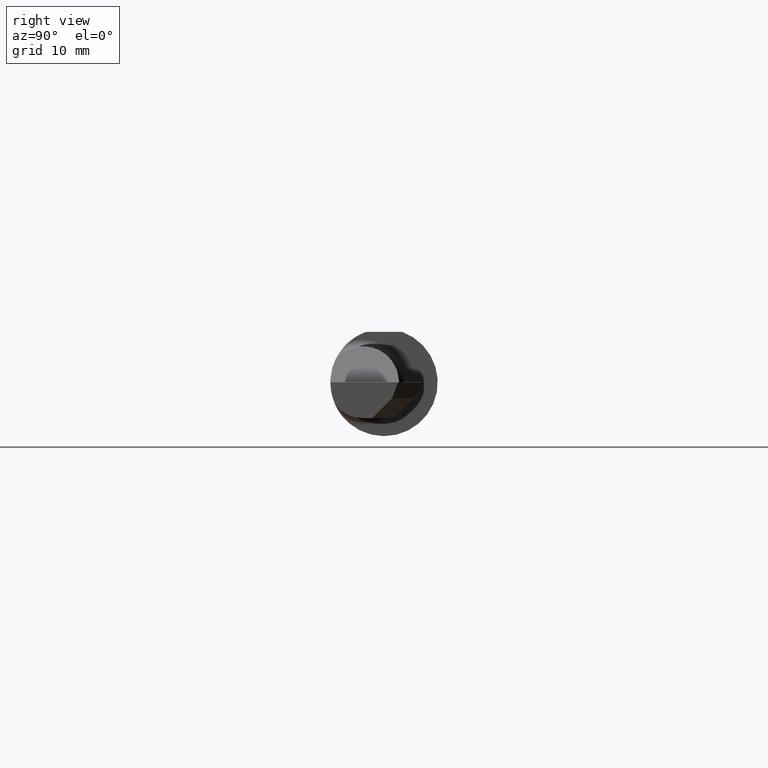
[diagram: clean part render]
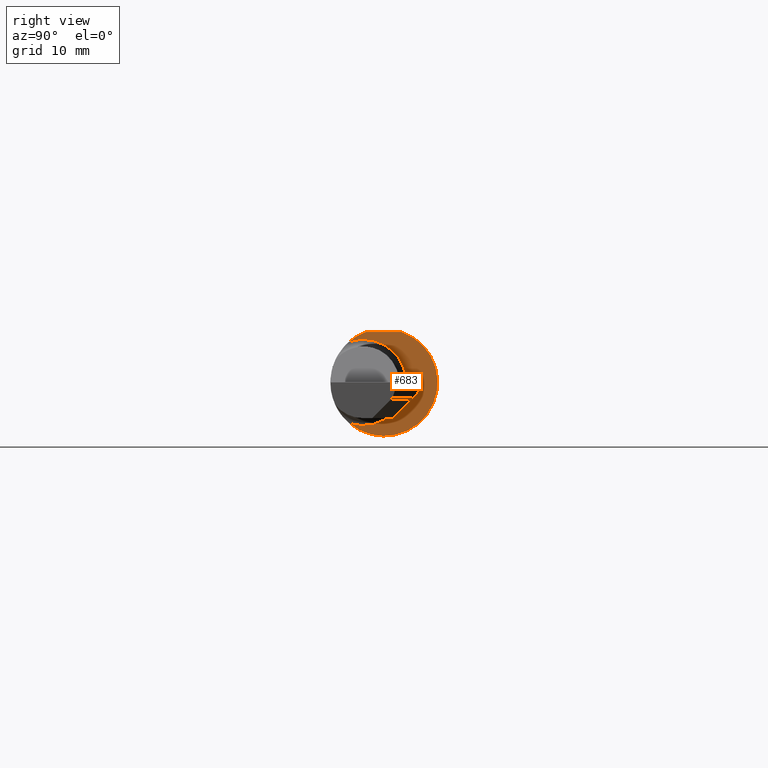
[diagram: same view with one face highlighted and labeled with its STEP entity id]
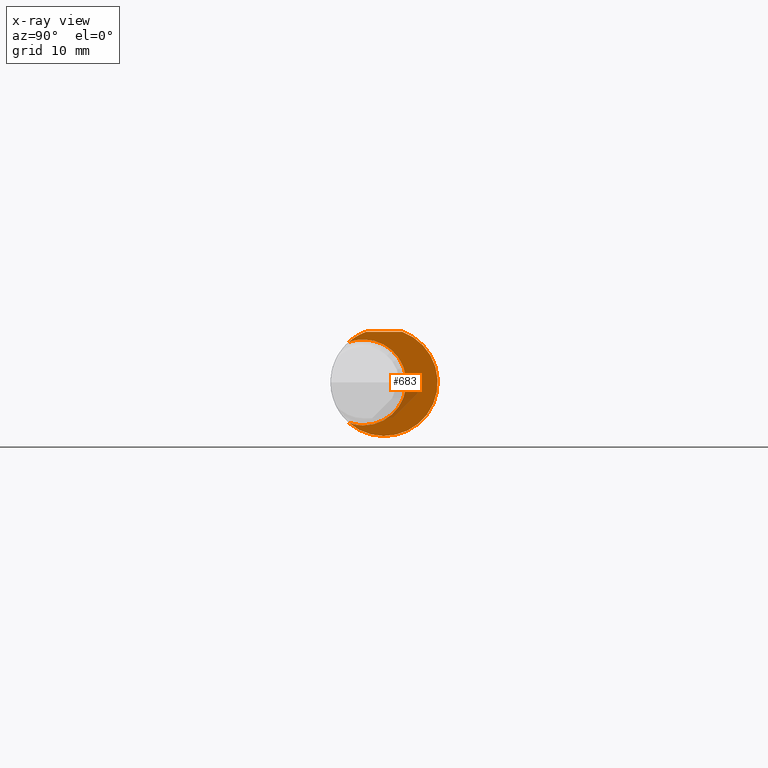
[diagram: x-ray of the same camera — body ghosted, the highlighted face saturated]
A machine part, right view. The second image highlights one B-rep face of the part: STEP entity #683.
The next image is the same camera in x-ray: the body ghosted, the highlighted face saturated — about 9% of this face is hidden behind the body in this view.
In plain terms, the highlighted planar face has unit normal (1, 0, 0).
Its self-contained STEP definition (entity closure, byte-faithful):
#16 = EDGE_CURVE ( 'NONE', #564, #267, #25, .T. ) ;
#25 = CIRCLE ( 'NONE', #352, 0.1873499999999999888 ) ;
#56 = AXIS2_PLACEMENT_3D ( 'NONE', #452, #746, #366 ) ;
#78 = DIRECTION ( 'NONE',  ( 1.000000000000000000, 0.000000000000000000, 0.000000000000000000 ) ) ;
#80 = CARTESIAN_POINT ( 'NONE',  ( 1.155000000000000027, -0.07234999999999998377, 0.000000000000000000 ) ) ;
#119 = CARTESIAN_POINT ( 'NONE',  ( 1.155000000000000027, -0.1232518659295093050, 0.1410992560040422727 ) ) ;
#143 = CARTESIAN_POINT ( 'NONE',  ( 1.155000000000000027, 0.000000000000000000, 0.000000000000000000 ) ) ;
#152 = CARTESIAN_POINT ( 'NONE',  ( 1.155000000000000027, 0.000000000000000000, 0.000000000000000000 ) ) ;
#161 = DIRECTION ( 'NONE',  ( -1.000000000000000000, -0.000000000000000000, -0.000000000000000000 ) ) ;
#179 = CARTESIAN_POINT ( 'NONE',  ( 1.155000000000000027, -0.06325108694718215019, 0.1763499999999999790 ) ) ;
#183 = DIRECTION ( 'NONE',  ( 0.000000000000000000, -1.000000000000000000, 0.000000000000000000 ) ) ;
#210 = AXIS2_PLACEMENT_3D ( 'NONE', #293, #282, #752 ) ;
#229 = CIRCLE ( 'NONE', #276, 0.1499999999999999944 ) ;
#232 = DIRECTION ( 'NONE',  ( -1.000000000000000000, -0.000000000000000000, -0.000000000000000000 ) ) ;
#233 = ORIENTED_EDGE ( 'NONE', *, *, #772, .T. ) ;
#234 = PLANE ( 'NONE',  #56 ) ;
#239 = VERTEX_POINT ( 'NONE', #581 ) ;
#242 = ORIENTED_EDGE ( 'NONE', *, *, #478, .T. ) ;
#267 = VERTEX_POINT ( 'NONE', #286 ) ;
#276 = AXIS2_PLACEMENT_3D ( 'NONE', #316, #232, #530 ) ;
#282 = DIRECTION ( 'NONE',  ( -1.000000000000000000, -0.000000000000000000, -0.000000000000000000 ) ) ;
#286 = CARTESIAN_POINT ( 'NONE',  ( 1.155000000000000027, 0.06325108694718213631, 0.1763499999999999790 ) ) ;
#293 = CARTESIAN_POINT ( 'NONE',  ( 1.155000000000000027, -0.07234999999999998377, 0.000000000000000000 ) ) ;
#296 = ORIENTED_EDGE ( 'NONE', *, *, #461, .T. ) ;
#312 = DIRECTION ( 'NONE',  ( 0.000000000000000000, 0.000000000000000000, -1.000000000000000000 ) ) ;
#316 = CARTESIAN_POINT ( 'NONE',  ( 1.155000000000000027, -0.07234999999999998377, 0.000000000000000000 ) ) ;
#352 = AXIS2_PLACEMENT_3D ( 'NONE', #143, #738, #429 ) ;
#356 = ORIENTED_EDGE ( 'NONE', *, *, #741, .T. ) ;
#366 = DIRECTION ( 'NONE',  ( 0.000000000000000000, 0.000000000000000000, -1.000000000000000000 ) ) ;
#377 = DIRECTION ( 'NONE',  ( 0.000000000000000000, 0.000000000000000000, -1.000000000000000000 ) ) ;
#397 = VECTOR ( 'NONE', #183, 39.37007874015748143 ) ;
#414 = AXIS2_PLACEMENT_3D ( 'NONE', #152, #78, #377 ) ;
#429 = DIRECTION ( 'NONE',  ( 0.000000000000000000, 0.000000000000000000, -1.000000000000000000 ) ) ;
#443 = CIRCLE ( 'NONE', #210, 0.1499999999999999944 ) ;
#452 = CARTESIAN_POINT ( 'NONE',  ( 1.155000000000000027, 0.2526500000000000412, 0.000000000000000000 ) ) ;
#461 = EDGE_CURVE ( 'NONE', #239, #725, #229, .T. ) ;
#478 = EDGE_CURVE ( 'NONE', #725, #564, #572, .T. ) ;
#498 = ORIENTED_EDGE ( 'NONE', *, *, #905, .T. ) ;
#524 = VERTEX_POINT ( 'NONE', #179 ) ;
#530 = DIRECTION ( 'NONE',  ( 0.000000000000000000, 0.000000000000000000, -1.000000000000000000 ) ) ;
#553 = EDGE_LOOP ( 'NONE', ( #233, #356, #296, #242, #856, #498 ) ) ;
#556 = VERTEX_POINT ( 'NONE', #119 ) ;
#557 = CARTESIAN_POINT ( 'NONE',  ( 1.155000000000000027, 0.1749999999999999889, 0.1763499999999999790 ) ) ;
#559 = CARTESIAN_POINT ( 'NONE',  ( 1.155000000000000027, -0.1232518659295093050, -0.1410992560040422727 ) ) ;
#564 = VERTEX_POINT ( 'NONE', #559 ) ;
#572 = CIRCLE ( 'NONE', #684, 0.1499999999999999944 ) ;
#581 = CARTESIAN_POINT ( 'NONE',  ( 1.155000000000000027, -0.07234999999999996989, 0.1499999999999999944 ) ) ;
#683 = ADVANCED_FACE ( 'NONE', ( #742 ), #234, .T. ) ;
#684 = AXIS2_PLACEMENT_3D ( 'NONE', #80, #161, #312 ) ;
#725 = VERTEX_POINT ( 'NONE', #898 ) ;
#738 = DIRECTION ( 'NONE',  ( 1.000000000000000000, 0.000000000000000000, 0.000000000000000000 ) ) ;
#741 = EDGE_CURVE ( 'NONE', #556, #239, #443, .T. ) ;
#742 = FACE_OUTER_BOUND ( 'NONE', #553, .T. ) ;
#746 = DIRECTION ( 'NONE',  ( 1.000000000000000000, 0.000000000000000000, 0.000000000000000000 ) ) ;
#752 = DIRECTION ( 'NONE',  ( 0.000000000000000000, 0.000000000000000000, -1.000000000000000000 ) ) ;
#763 = CIRCLE ( 'NONE', #414, 0.1873499999999999888 ) ;
#772 = EDGE_CURVE ( 'NONE', #524, #556, #763, .T. ) ;
#856 = ORIENTED_EDGE ( 'NONE', *, *, #16, .T. ) ;
#898 = CARTESIAN_POINT ( 'NONE',  ( 1.155000000000000027, -0.07234999999999998377, -0.1499999999999999944 ) ) ;
#905 = EDGE_CURVE ( 'NONE', #267, #524, #939, .T. ) ;
#939 = LINE ( 'NONE', #557, #397 ) ;